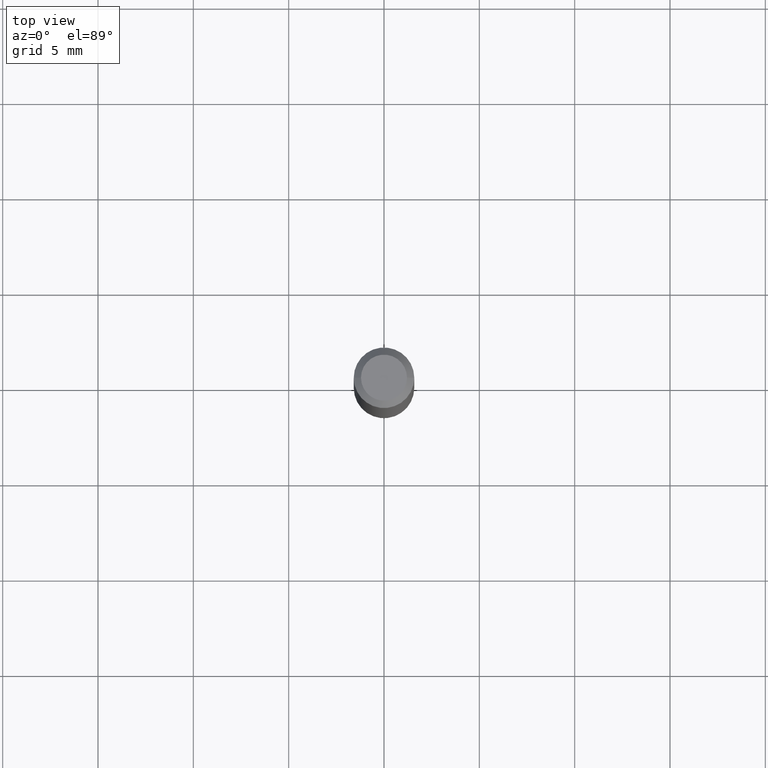
[diagram: clean part render]
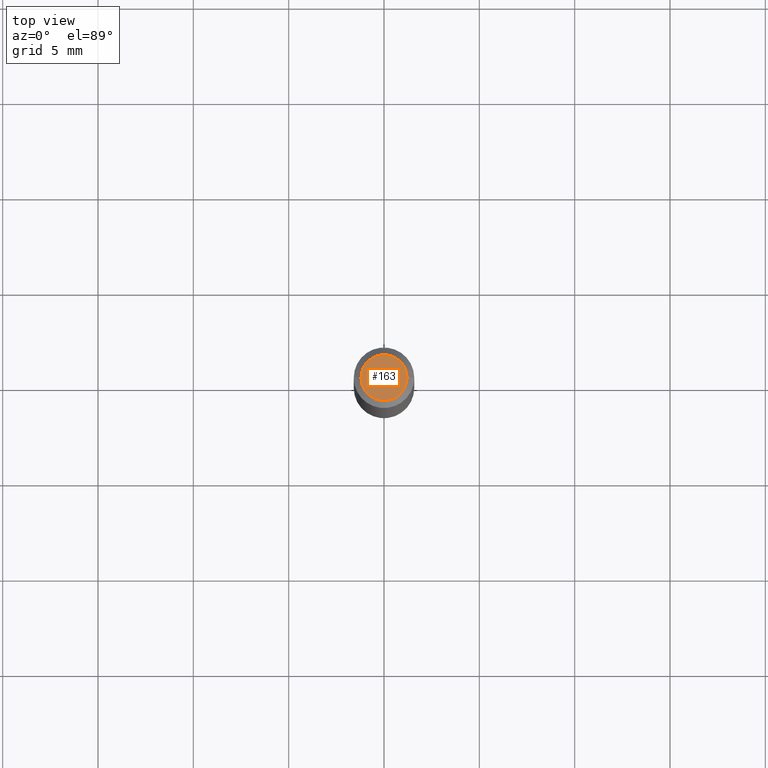
[diagram: same view with one face highlighted and labeled with its STEP entity id]
A machine part, top view. The second image highlights one B-rep face of the part: STEP entity #163.
In plain terms, the highlighted planar face has unit normal (0, -0, -1).
Its self-contained STEP definition (entity closure, byte-faithful):
#12 = CARTESIAN_POINT ( 'NONE',  ( 1.278896122067429216E-44, -1.825924719719875646E-30, -5.229656247639779395E-16 ) ) ;
#22 = CARTESIAN_POINT ( 'NONE',  ( 3.316907271900976096E-16, 0.04749999999999999362, -4.273281759770383169E-16 ) ) ;
#60 = ORIENTED_EDGE ( 'NONE', *, *, #106, .T. ) ;
#100 = CARTESIAN_POINT ( 'NONE',  ( 0.04749999999999999362, -4.035134999187587991E-16, -5.229656247639753758E-16 ) ) ;
#106 = EDGE_CURVE ( 'NONE', #300, #349, #408, .T. ) ;
#143 = AXIS2_PLACEMENT_3D ( 'NONE', #166, #239, #421 ) ;
#163 = ADVANCED_FACE ( 'NONE', ( #194 ), #344, .F. ) ;
#166 = CARTESIAN_POINT ( 'NONE',  ( 1.278896122067429216E-44, -1.825924719719875646E-30, -5.229656247639779395E-16 ) ) ;
#194 = FACE_OUTER_BOUND ( 'NONE', #306, .T. ) ;
#198 = DIRECTION ( 'NONE',  ( -2.445468806185136597E-29, 3.491481338843145583E-15, 1.000000000000000000 ) ) ;
#211 = EDGE_CURVE ( 'NONE', #349, #300, #234, .T. ) ;
#233 = DIRECTION ( 'NONE',  ( -1.000000000000000000, 6.982962677686265922E-15, -4.876176775795935793E-29 ) ) ;
#234 = CIRCLE ( 'NONE', #143, 0.04749999999999999362 ) ;
#238 = ORIENTED_EDGE ( 'NONE', *, *, #211, .T. ) ;
#239 = DIRECTION ( 'NONE',  ( -2.445468806185136597E-29, 3.491481338843145583E-15, 1.000000000000000000 ) ) ;
#241 = DIRECTION ( 'NONE',  ( 2.438088387897960049E-29, -3.491481338843145188E-15, -1.000000000000000000 ) ) ;
#300 = VERTEX_POINT ( 'NONE', #383 ) ;
#305 = DIRECTION ( 'NONE',  ( 1.000000000000000000, -6.982962677686267499E-15, 4.852736867747366768E-29 ) ) ;
#306 = EDGE_LOOP ( 'NONE', ( #60, #238 ) ) ;
#344 = PLANE ( 'NONE',  #423 ) ;
#349 = VERTEX_POINT ( 'NONE', #100 ) ;
#383 = CARTESIAN_POINT ( 'NONE',  ( -0.04749999999999999362, 3.578768372314202124E-16, -5.229656247639803061E-16 ) ) ;
#408 = CIRCLE ( 'NONE', #432, 0.04749999999999999362 ) ;
#421 = DIRECTION ( 'NONE',  ( 1.000000000000000000, -6.982962677686267499E-15, 4.852736867747366768E-29 ) ) ;
#423 = AXIS2_PLACEMENT_3D ( 'NONE', #22, #241, #233 ) ;
#432 = AXIS2_PLACEMENT_3D ( 'NONE', #12, #198, #305 ) ;